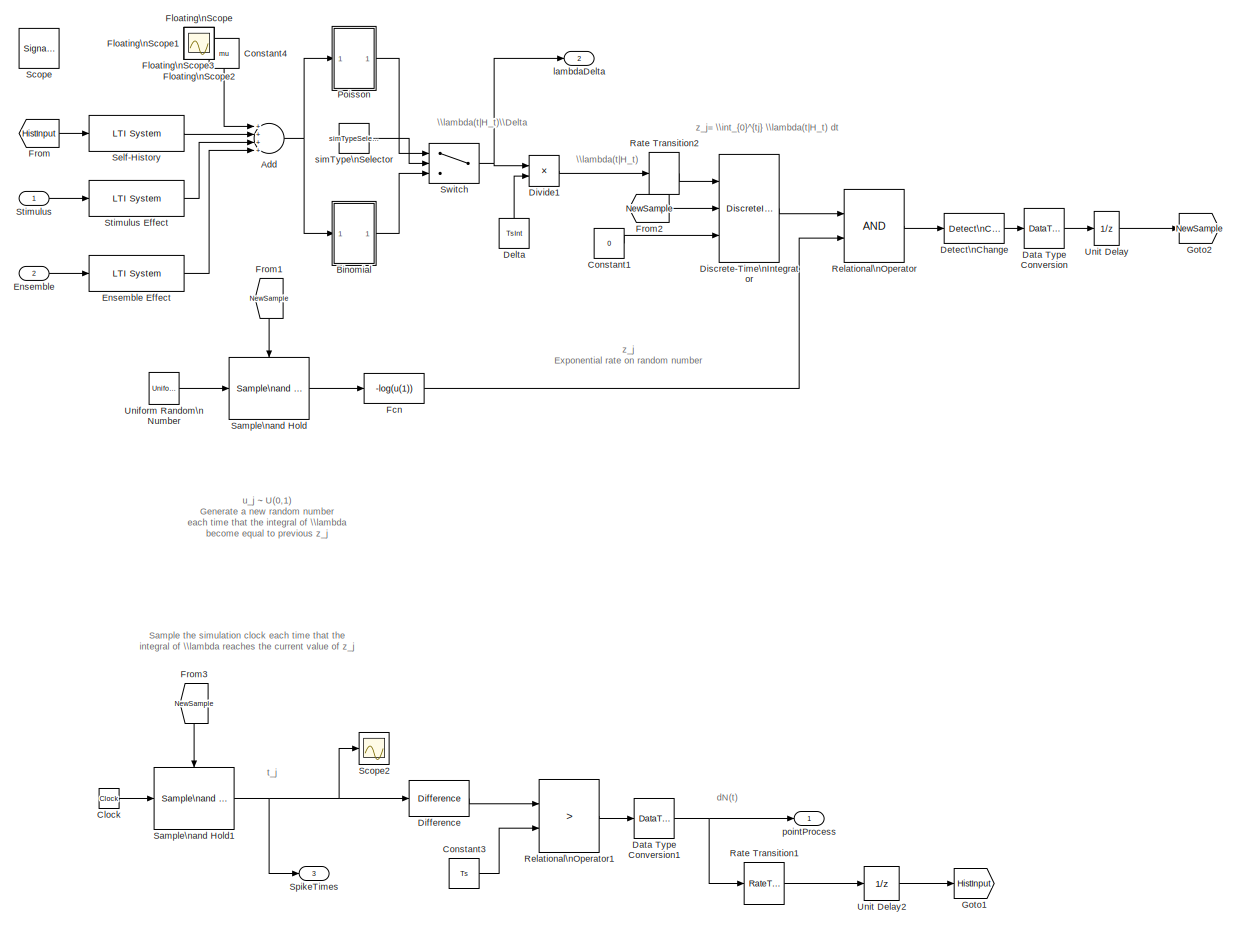
[diagram: root canvas - part 1/1, most of the canvas]
MODEL PointProcessSimulationThinning
KIND model
BLOCK [Sum] Add
  InputSameDT = off
  Inputs = ++++
  OutDataTypeStr = Inherit: Inherit via internal rule
  Ports = [4, 1]
  SID = 111
  SaturateOnIntegerOverflow = off
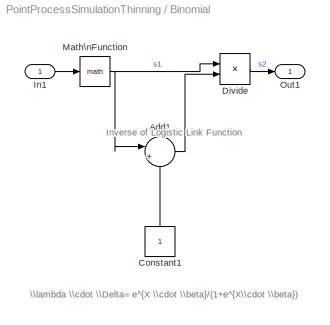
BLOCK [SubSystem] Binomial
  FunctionWithSeparateData = off
  MaskHideContents = off
  MinAlgLoopOccurrences = off
  Opaque = off
  Ports = [1, 1]
  PropExecContextOutsideSubsystem = off
  RTWSystemCode = Auto
  RequestExecContextInheritance = off
  SID = 112
BLOCK [Sum] Binomial/Add1
  IconShape = round
  InputSameDT = off
  Inputs = |++
  OutDataTypeStr = Inherit: Inherit via internal rule
  Ports = [2, 1]
  SID = 114
  SaturateOnIntegerOverflow = off
BLOCK [Constant] Binomial/Constant1
  SID = 115
BLOCK [Product] Binomial/Divide
  InputSameDT = off
  Inputs = */
  OutDataTypeStr = Inherit: Inherit via internal rule
  Ports = [2, 1]
  RndMeth = Floor
  SID = 116
  SaturateOnIntegerOverflow = off
BLOCK [Inport] Binomial/In1
  IconDisplay = Port number
  SID = 113
BLOCK [Math] Binomial/Math\nFunction
  Ports = [1, 1]
  SID = 117
BLOCK [Outport] Binomial/Out1
  IconDisplay = Port number
  SID = 118
BLOCK [Clock] Clock
  Decimation = 10
  SID = 189
BLOCK [Constant] Constant1
  SID = 48
  Value = 0
BLOCK [Constant] Constant3
  SID = 195
  SampleTime = Ts
  Value = Ts
BLOCK [Constant] Constant4
  SID = 119
  Value = mu
BLOCK [DataTypeConversion] Data Type Conversion
  RndMeth = Floor
  SID = 91
  SaturateOnIntegerOverflow = off
BLOCK [DataTypeConversion] Data Type Conversion1
  RndMeth = Floor
  SID = 196
  SaturateOnIntegerOverflow = off
BLOCK [Constant] Delta
  SID = 120
  Value = TsInt
BLOCK [Reference] Detect\nChange  REF=simulink/Logic and Bit\nOperations/Detect\nChange
  FunctionWithSeparateData = off
  GeneratePreprocessorConditionals = off
  Ports = [1, 1]
  RTWMemSecDataConstants = Inherit from model
  RTWMemSecDataInternal = Inherit from model
  RTWMemSecDataParameters = Inherit from model
  RTWMemSecFuncExecute = Inherit from model
  RTWMemSecFuncInitTerm = Inherit from model
  SID = 90
  ShowPortLabels = FromPortIcon
  SourceBlock = simulink/Logic and Bit\nOperations/Detect\nChange
  SourceType = Detect Change
  SystemSampleTime = -1
  vinit = 0
BLOCK [Reference] Difference  REF=simulink/Discrete/Difference
  DoSatur = off
  FunctionWithSeparateData = off
  GeneratePreprocessorConditionals = off
  ICPrevInput = 0.0
  LockScale = off
  OutDataType = fixdt(1, 16)
  OutDataTypeStr = Inherit: Inherit via internal rule
  OutMax = []
  OutMin = []
  OutScaling = 2^-10
  OutputDataTypeScalingMode = Inherit via internal rule
  Ports = [1, 1]
  RTWMemSecDataConstants = Inherit from model
  RTWMemSecDataInternal = Inherit from model
  RTWMemSecDataParameters = Inherit from model
  RTWMemSecFuncExecute = Inherit from model
  RTWMemSecFuncInitTerm = Inherit from model
  RndMeth = Floor
  SID = 193
  ShowPortLabels = FromPortIcon
  SourceBlock = simulink/Discrete/Difference
  SourceType = Difference
  SystemSampleTime = -1
BLOCK [DiscreteIntegrator] Discrete-Time\nIntegrator
  ExternalReset = either
  ICPrevOutput = DiscIntNeverNeededParam
  ICPrevScaledInput = DiscIntNeverNeededParam
  InitialConditionSource = external
  IntegratorMethod = Integration: Forward Euler
  Ports = [3, 1]
  SID = 203
  SampleTime = Ts
BLOCK [Product] Divide1
  InputSameDT = off
  Inputs = */
  OutDataTypeStr = Inherit: Inherit via internal rule
  Ports = [2, 1]
  RndMeth = Floor
  SID = 121
  SampleTime = TsInt
  SaturateOnIntegerOverflow = off
BLOCK [Inport] Ensemble
  IconDisplay = Port number
  Port = 2
  SID = 180
BLOCK [Reference] Ensemble Effect  REF=cstblocks/LTI System
  FunctionWithSeparateData = off
  GeneratePreprocessorConditionals = off
  IC = []
  Ports = [1, 1]
  RTWMemSecDataConstants = Inherit from model
  RTWMemSecDataInternal = Inherit from model
  RTWMemSecDataParameters = Inherit from model
  RTWMemSecFuncExecute = Inherit from model
  RTWMemSecFuncInitTerm = Inherit from model
  SID = 122
  ShowPortLabels = FromPortIcon
  SourceBlock = cstblocks/LTI System
  SourceType = LTI Block
  SystemSampleTime = -1
  sys = E
BLOCK [Fcn] Fcn
  Expr = -log(u(1))
  SID = 5
BLOCK [Scope] Floating\nScope
  DataFormat = StructureWithTime
  Floating = on
  IOType = viewer
  NumInputPorts = 1
  Ports = []
  SID = 85
  SampleTime = 0
  SaveName = ScopeData2
  YMax = 275
  YMin = 25
BLOCK [Scope] Floating\nScope1
  DataFormat = StructureWithTime
  Floating = on
  IOType = viewer
  NumInputPorts = 1
  Ports = []
  SID = 86
  SampleTime = 0
  SaveName = ScopeData3
BLOCK [Scope] Floating\nScope2
  DataFormat = StructureWithTime
  Floating = on
  IOType = viewer
  NumInputPorts = 1
  Ports = []
  SID = 87
  SampleTime = 0
  SaveName = ScopeData4
  YMax = 1
  YMin = 1
BLOCK [Scope] Floating\nScope3
  DataFormat = StructureWithTime
  Floating = on
  IOType = viewer
  NumInputPorts = 1
  Ports = []
  SID = 93
  SampleTime = 0
  SaveName = ScopeData5
BLOCK [From] From
  GotoTag = HistInput
  SID = 183
BLOCK [From] From1
  GotoTag = NewSample
  SID = 186
BLOCK [From] From2
  GotoTag = NewSample
  SID = 188
BLOCK [From] From3
  GotoTag = NewSample
  SID = 192
BLOCK [Goto] Goto1
  GotoTag = HistInput
  SID = 200
  TagVisibility = local
BLOCK [Goto] Goto2
  GotoTag = NewSample
  SID = 187
  TagVisibility = local
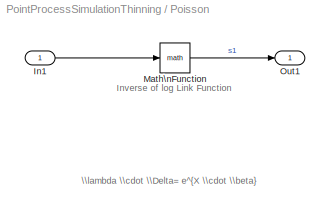
BLOCK [SubSystem] Poisson
  FunctionWithSeparateData = off
  MaskHideContents = off
  MinAlgLoopOccurrences = off
  Opaque = off
  Ports = [1, 1]
  PropExecContextOutsideSubsystem = off
  RTWSystemCode = Auto
  RequestExecContextInheritance = off
  SID = 123
BLOCK [Inport] Poisson/In1
  IconDisplay = Port number
  SID = 124
BLOCK [Math] Poisson/Math\nFunction
  Ports = [1, 1]
  SID = 125
BLOCK [Outport] Poisson/Out1
  IconDisplay = Port number
  SID = 126
BLOCK [RateTransition] Rate Transition1
  OutPortSampleTime = TsInt
  SID = 197
BLOCK [RateTransition] Rate Transition2
  OutPortSampleTime = Ts
  SID = 175
BLOCK [RelationalOperator] Relational\nOperator
  InputSameDT = off
  Ports = [2, 1]
  SID = 49
  SampleTime = Ts
BLOCK [RelationalOperator] Relational\nOperator1
  InputSameDT = off
  Operator = >
  Ports = [2, 1]
  SID = 194
BLOCK [Reference] Sample\nand Hold  REF=dspsigops/Sample\nand Hold
  FunctionWithSeparateData = off
  GeneratePreprocessorConditionals = off
  Ports = [1, 1, 0, 1]
  RTWMemSecDataConstants = Inherit from model
  RTWMemSecDataInternal = Inherit from model
  RTWMemSecDataParameters = Inherit from model
  RTWMemSecFuncExecute = Inherit from model
  RTWMemSecFuncInitTerm = Inherit from model
  SID = 4
  ShowPortLabels = FromPortIcon
  SourceBlock = dspsigops/Sample\nand Hold
  SourceType = Sample and Hold
  SystemSampleTime = -1
  initCond = rand(1,1)
  latchinput = on
  trig = Rising edge
BLOCK [Reference] Sample\nand Hold1  REF=dspsigops/Sample\nand Hold
  FunctionWithSeparateData = off
  GeneratePreprocessorConditionals = off
  Ports = [1, 1, 0, 1]
  RTWMemSecDataConstants = Inherit from model
  RTWMemSecDataInternal = Inherit from model
  RTWMemSecDataParameters = Inherit from model
  RTWMemSecFuncExecute = Inherit from model
  RTWMemSecFuncInitTerm = Inherit from model
  SID = 190
  ShowPortLabels = FromPortIcon
  SourceBlock = dspsigops/Sample\nand Hold
  SourceType = Sample and Hold
  SystemSampleTime = -1
  initCond = 0
  latchinput = on
  trig = Rising edge
BLOCK [SignalViewerScope] Scope
  DataFormat = Array
  IOType = viewer
  MaxDataPoints = 7500
  NumInputPorts = 1
  Ports = []
  RefreshTime = 0.035000
  SID = 84
  ShowDataMarkers = off
  ShowLegends = off
  YMax = 1
  YMin = -1
BLOCK [Scope] Scope2
  DataFormat = StructureWithTime
  Floating = off
  NumInputPorts = 1
  Ports = [1]
  SID = 191
  SampleTime = 0
  YMax = 1.25
  YMin = 1.05
BLOCK [Reference] Self-History  REF=cstblocks/LTI System
  FunctionWithSeparateData = off
  GeneratePreprocessorConditionals = off
  IC = []
  Ports = [1, 1]
  RTWMemSecDataConstants = Inherit from model
  RTWMemSecDataInternal = Inherit from model
  RTWMemSecDataParameters = Inherit from model
  RTWMemSecFuncExecute = Inherit from model
  RTWMemSecFuncInitTerm = Inherit from model
  SID = 127
  ShowPortLabels = FromPortIcon
  SourceBlock = cstblocks/LTI System
  SourceType = LTI Block
  SystemSampleTime = -1
  sys = H
BLOCK [Outport] SpikeTimes
  IconDisplay = Port number
  Port = 3
  SID = 136
BLOCK [Inport] Stimulus
  IconDisplay = Port number
  SID = 108
BLOCK [Reference] Stimulus Effect  REF=cstblocks/LTI System
  FunctionWithSeparateData = off
  GeneratePreprocessorConditionals = off
  IC = []
  Ports = [1, 1]
  RTWMemSecDataConstants = Inherit from model
  RTWMemSecDataInternal = Inherit from model
  RTWMemSecDataParameters = Inherit from model
  RTWMemSecFuncExecute = Inherit from model
  RTWMemSecFuncInitTerm = Inherit from model
  SID = 128
  ShowPortLabels = FromPortIcon
  SourceBlock = cstblocks/LTI System
  SourceType = LTI Block
  SystemSampleTime = -1
  sys = S
BLOCK [Switch] Switch
  Criteria = u2 ~= 0
  InputSameDT = off
  SID = 129
  SaturateOnIntegerOverflow = off
BLOCK [UniformRandomNumber] Uniform Random\nNumber
  Minimum = 0
  SID = 3
  SampleTime = Ts
BLOCK [UnitDelay] Unit Delay
  InputProcessing = Elements as channels (sample based)
  SID = 158
  SampleTime = Ts
BLOCK [UnitDelay] Unit Delay2
  InputProcessing = Elements as channels (sample based)
  SID = 199
  SampleTime = -1
BLOCK [Outport] lambdaDelta
  IconDisplay = Port number
  Port = 2
  SID = 202
BLOCK [Outport] pointProcess
  IconDisplay = Port number
  SID = 141
BLOCK [Constant] simType\nSelector
  SID = 201
  Value = simTypeSelect
ANNOTATION (root): Sample the simulation clock each time that the\nintegral of \\lambda reaches the current value of z_j
ANNOTATION (root): \\lambda(t|H_t)
ANNOTATION (root): \\lambda(t|H_t)\\Delta
ANNOTATION (root): dN(t)
ANNOTATION (root): t_j
ANNOTATION (root): u_j ~ U(0,1)\nGenerate a new random number\neach time that the integral of \\lambda\nbecome equal to previous z_j
ANNOTATION (root): z_j \nExponential rate on random number
ANNOTATION (root): z_j= \\int_{0}^{tj} \\lambda(t|H_t) dt
ANNOTATION Binomial: Inverse of Logistic Link Function\n \n\n\n\n\n\n\n\n\n\n.
ANNOTATION Binomial: \\lambda \\cdot \\Delta= e^{X \\cdot \\beta}/(1+e^{X\\cdot \\beta})
ANNOTATION Poisson: Inverse of log Link Function\n \n\n\n\n\n\n.
ANNOTATION Poisson: \\lambda \\cdot \\Delta= e^{X \\cdot \\beta}
NET Add:1 -> Binomial:1, Poisson:1
LINE Binomial/Add1:1 -> Binomial/Divide:2
LINE Binomial/Constant1:1 -> Binomial/Add1:2
LINE Binomial/Divide:1 -> Binomial/Out1:1
LINE Binomial/In1:1 -> Binomial/Math\nFunction:1
NET Binomial/Math\nFunction:1 -> Binomial/Add1:1, Binomial/Divide:1
LINE Binomial:1 -> Switch:3
LINE Clock:1 -> Sample\nand Hold1:1
LINE Constant1:1 -> Discrete-Time\nIntegrator:3
LINE Constant3:1 -> Relational\nOperator1:2
LINE Constant4:1 -> Add:1
NET Data Type Conversion1:1 -> Rate Transition1:1, pointProcess:1
LINE Data Type Conversion:1 -> Unit Delay:1
LINE Delta:1 -> Divide1:2
LINE Detect\nChange:1 -> Data Type Conversion:1
LINE Difference:1 -> Relational\nOperator1:1
LINE Discrete-Time\nIntegrator:1 -> Relational\nOperator:1
LINE Divide1:1 -> Rate Transition2:1
LINE Ensemble Effect:1 -> Add:4
LINE Ensemble:1 -> Ensemble Effect:1
LINE Fcn:1 -> Relational\nOperator:2
LINE From1:1 -> Sample\nand Hold:trigger
LINE From2:1 -> Discrete-Time\nIntegrator:2
LINE From3:1 -> Sample\nand Hold1:trigger
LINE From:1 -> Self-History:1
LINE Poisson/In1:1 -> Poisson/Math\nFunction:1
LINE Poisson/Math\nFunction:1 -> Poisson/Out1:1
LINE Poisson:1 -> Switch:1
LINE Rate Transition1:1 -> Unit Delay2:1
LINE Rate Transition2:1 -> Discrete-Time\nIntegrator:1
LINE Relational\nOperator1:1 -> Data Type Conversion1:1
LINE Relational\nOperator:1 -> Detect\nChange:1
NET Sample\nand Hold1:1 -> Difference:1, Scope2:1, SpikeTimes:1
LINE Sample\nand Hold:1 -> Fcn:1
LINE Self-History:1 -> Add:2
LINE Stimulus Effect:1 -> Add:3
LINE Stimulus:1 -> Stimulus Effect:1
NET Switch:1 -> Divide1:1, lambdaDelta:1
LINE Uniform Random\nNumber:1 -> Sample\nand Hold:1
LINE Unit Delay2:1 -> Goto1:1
LINE Unit Delay:1 -> Goto2:1
LINE simType\nSelector:1 -> Switch:2
note: NET lines group one-source signal fan-out (src -> all destinations, sorted); 1:1 wires keep LINE
